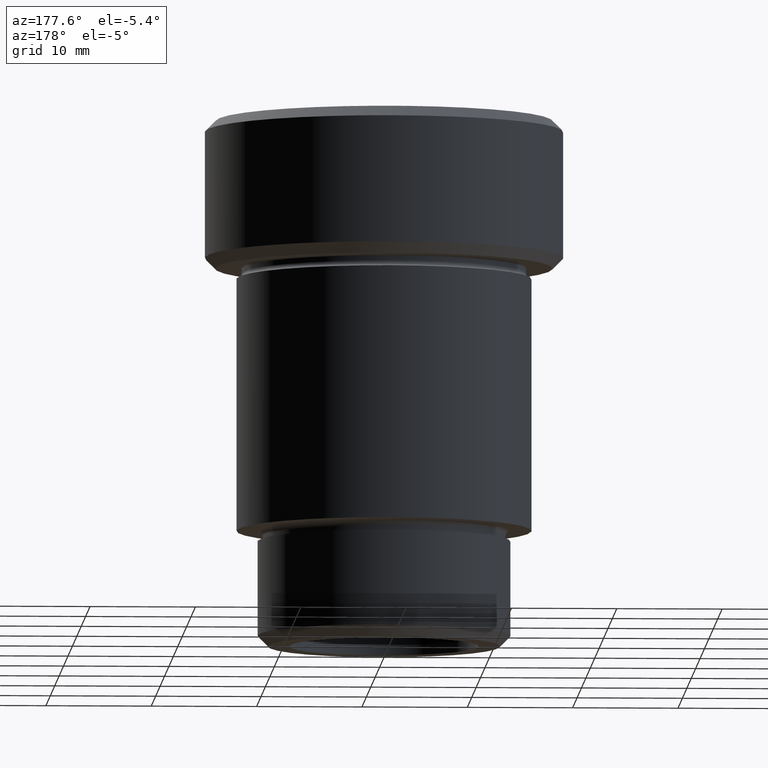
[diagram: clean part render]
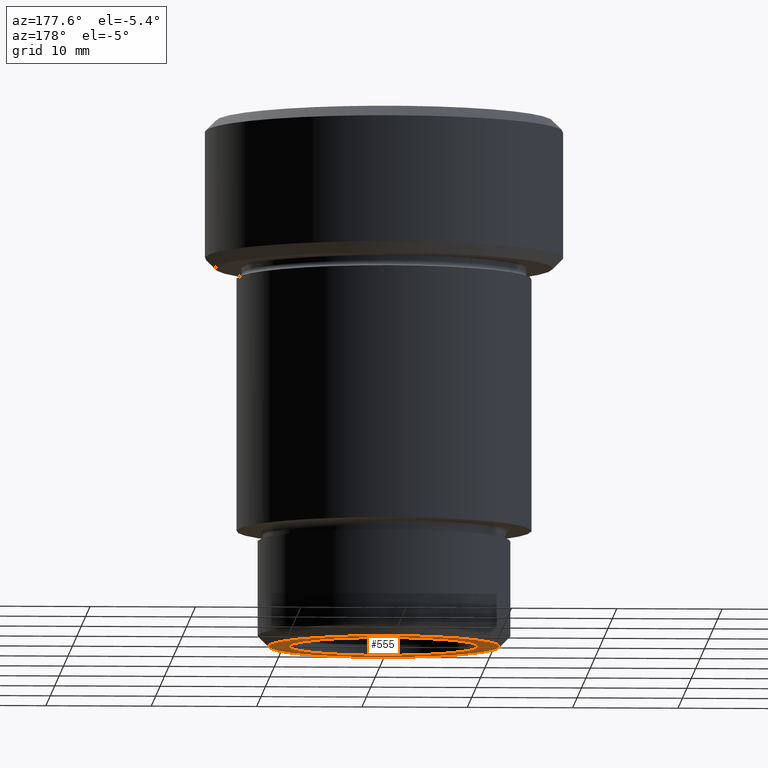
[diagram: same view with one face highlighted and labeled with its STEP entity id]
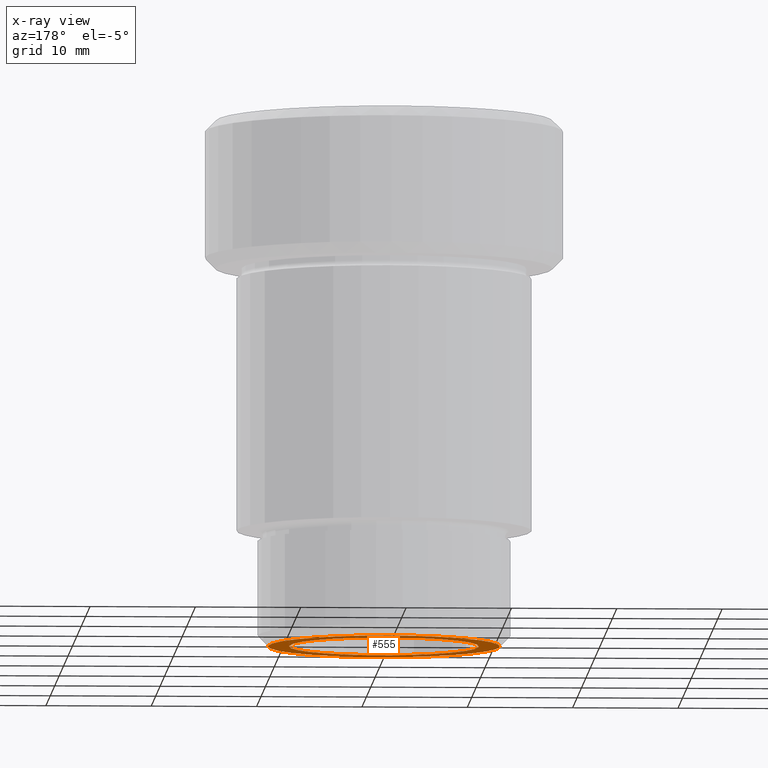
[diagram: x-ray of the same camera — body ghosted, the highlighted face saturated]
A machine part, auxiliary view. The second image highlights one B-rep face of the part: STEP entity #555.
The next image is the same camera in x-ray: the body ghosted, the highlighted face saturated — about 0% of this face is hidden behind the body in this view.
In plain terms, the highlighted planar face has unit normal (0, 0, -1).
Its self-contained STEP definition (entity closure, byte-faithful):
#6 = DIRECTION ( 'NONE',  ( -1.000000000000000000, 0.000000000000000000, 0.000000000000000000 ) ) ;
#16 = CIRCLE ( 'NONE', #650, 10.99999999999997513 ) ;
#32 = CARTESIAN_POINT ( 'NONE',  ( 0.000000000000000000, 0.000000000000000000, -50.00000000000000000 ) ) ;
#57 = DIRECTION ( 'NONE',  ( 0.000000000000000000, 0.000000000000000000, 1.000000000000000000 ) ) ;
#74 = ORIENTED_EDGE ( 'NONE', *, *, #137, .T. ) ;
#137 = EDGE_CURVE ( 'NONE', #177, #559, #185, .T. ) ;
#153 = FACE_OUTER_BOUND ( 'NONE', #458, .T. ) ;
#158 = CARTESIAN_POINT ( 'NONE',  ( 0.000000000000000000, 0.000000000000000000, -50.00000000000000000 ) ) ;
#167 = CARTESIAN_POINT ( 'NONE',  ( 10.99999999999997513, 0.000000000000000000, -50.00000000000000000 ) ) ;
#177 = VERTEX_POINT ( 'NONE', #338 ) ;
#185 = CIRCLE ( 'NONE', #288, 9.000000000000000000 ) ;
#229 = VERTEX_POINT ( 'NONE', #167 ) ;
#271 = DIRECTION ( 'NONE',  ( 0.000000000000000000, 0.000000000000000000, 1.000000000000000000 ) ) ;
#288 = AXIS2_PLACEMENT_3D ( 'NONE', #158, #271, #712 ) ;
#295 = EDGE_LOOP ( 'NONE', ( #74, #541 ) ) ;
#297 = EDGE_CURVE ( 'NONE', #229, #693, #16, .T. ) ;
#324 = CARTESIAN_POINT ( 'NONE',  ( -9.000000000000000000, 1.102182119232617714E-15, -50.00000000000000000 ) ) ;
#338 = CARTESIAN_POINT ( 'NONE',  ( 9.000000000000000000, 0.000000000000000000, -50.00000000000000000 ) ) ;
#370 = AXIS2_PLACEMENT_3D ( 'NONE', #756, #560, #6 ) ;
#400 = PLANE ( 'NONE',  #615 ) ;
#416 = EDGE_CURVE ( 'NONE', #559, #177, #760, .T. ) ;
#431 = CARTESIAN_POINT ( 'NONE',  ( 0.000000000000000000, 0.000000000000000000, -50.00000000000000000 ) ) ;
#445 = DIRECTION ( 'NONE',  ( 0.000000000000000000, 0.000000000000000000, -1.000000000000000000 ) ) ;
#458 = EDGE_LOOP ( 'NONE', ( #661, #780 ) ) ;
#517 = CIRCLE ( 'NONE', #370, 10.99999999999997513 ) ;
#541 = ORIENTED_EDGE ( 'NONE', *, *, #416, .T. ) ;
#542 = EDGE_CURVE ( 'NONE', #693, #229, #517, .T. ) ;
#555 = ADVANCED_FACE ( 'NONE', ( #700, #153 ), #400, .T. ) ;
#559 = VERTEX_POINT ( 'NONE', #324 ) ;
#560 = DIRECTION ( 'NONE',  ( 0.000000000000000000, 0.000000000000000000, -1.000000000000000000 ) ) ;
#576 = DIRECTION ( 'NONE',  ( 0.000000000000000000, 0.000000000000000000, -1.000000000000000000 ) ) ;
#615 = AXIS2_PLACEMENT_3D ( 'NONE', #641, #445, #692 ) ;
#616 = AXIS2_PLACEMENT_3D ( 'NONE', #431, #57, #681 ) ;
#641 = CARTESIAN_POINT ( 'NONE',  ( 0.000000000000000000, 12.00000000000000355, -50.00000000000000000 ) ) ;
#650 = AXIS2_PLACEMENT_3D ( 'NONE', #32, #576, #716 ) ;
#661 = ORIENTED_EDGE ( 'NONE', *, *, #297, .T. ) ;
#680 = CARTESIAN_POINT ( 'NONE',  ( -10.99999999999997513, 1.408343819019454993E-15, -50.00000000000000000 ) ) ;
#681 = DIRECTION ( 'NONE',  ( 1.000000000000000000, 0.000000000000000000, 0.000000000000000000 ) ) ;
#692 = DIRECTION ( 'NONE',  ( -1.000000000000000000, 0.000000000000000000, -0.000000000000000000 ) ) ;
#693 = VERTEX_POINT ( 'NONE', #680 ) ;
#700 = FACE_BOUND ( 'NONE', #295, .T. ) ;
#712 = DIRECTION ( 'NONE',  ( 1.000000000000000000, 0.000000000000000000, 0.000000000000000000 ) ) ;
#716 = DIRECTION ( 'NONE',  ( -1.000000000000000000, 0.000000000000000000, 0.000000000000000000 ) ) ;
#756 = CARTESIAN_POINT ( 'NONE',  ( 0.000000000000000000, 0.000000000000000000, -50.00000000000000000 ) ) ;
#760 = CIRCLE ( 'NONE', #616, 9.000000000000000000 ) ;
#780 = ORIENTED_EDGE ( 'NONE', *, *, #542, .T. ) ;